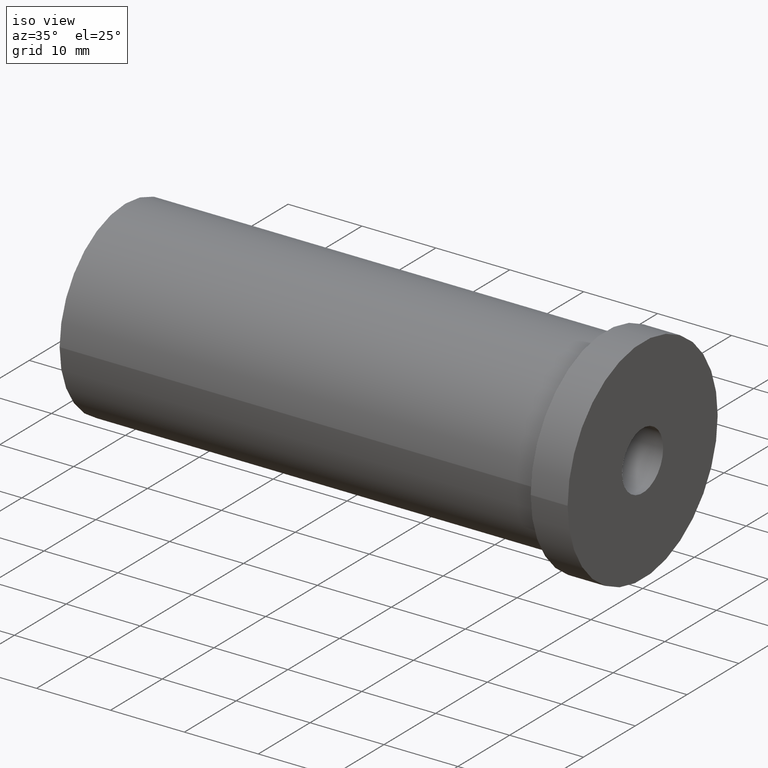
[diagram: clean part render]
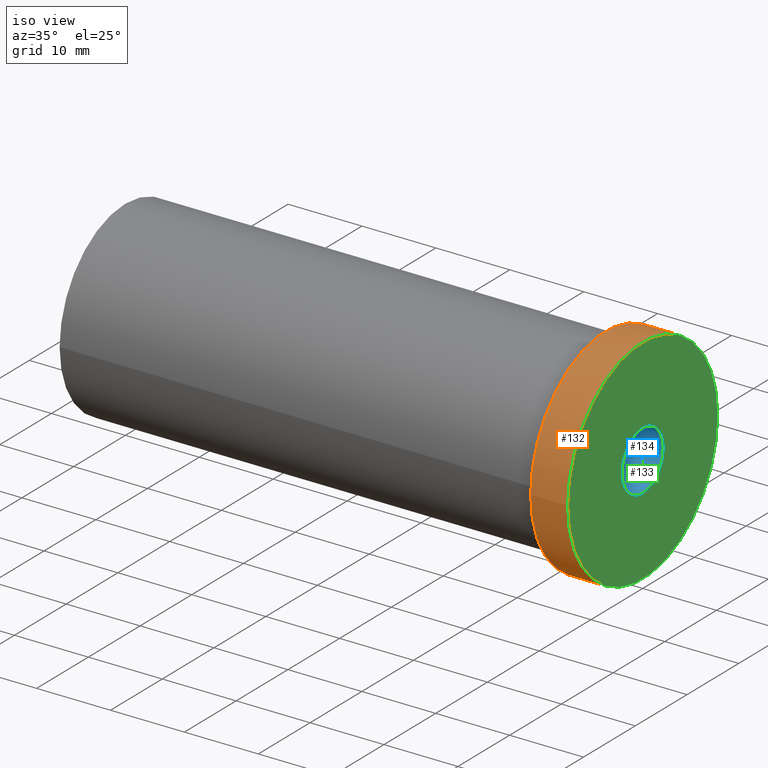
[diagram: same view with three faces highlighted in distinct colors, each labeled with its STEP entity id]
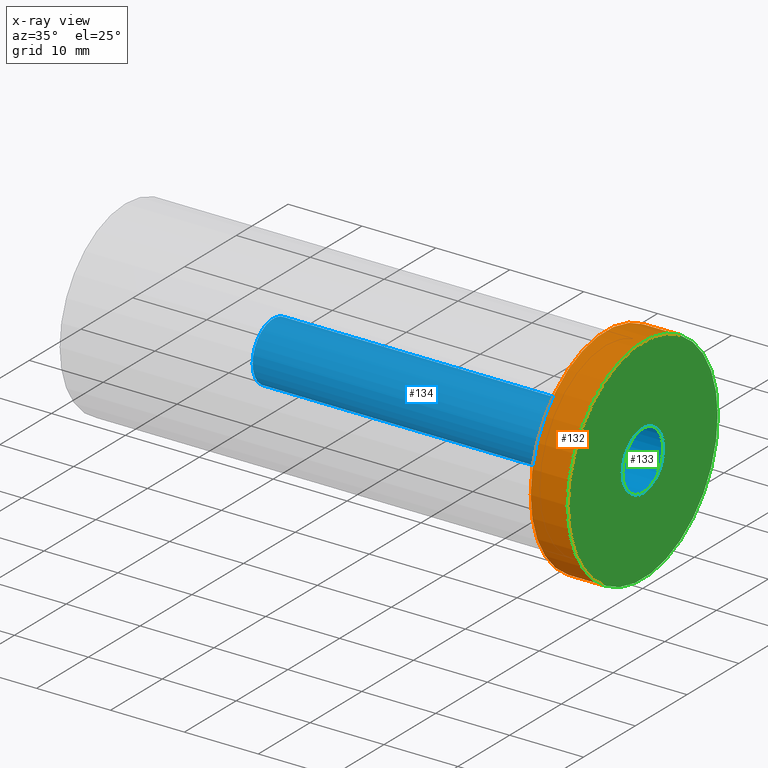
[diagram: x-ray of the same camera — body ghosted, the three highlighted faces saturated]
A machine part, iso view with three faces highlighted in distinct colors.
The next image is the same camera in x-ray (body ghosted, the three faces saturated) — at least one of them is partly hidden behind the body in this view.
Their STEP definitions:

[orange] entity #132 — the highlighted cylindrical surface (bore or boss wall) has radius 14.5 mm, axis along (1, 0, 0).
#27=FACE_OUTER_BOUND('',#38,.T.);
#38=EDGE_LOOP('',(#101,#102,#103,#104));
#51=LINE('',#245,#56);
#56=VECTOR('',#202,14.5);
#62=CIRCLE('',#167,14.5);
#64=CIRCLE('',#170,14.5);
#72=VERTEX_POINT('',#238);
#74=VERTEX_POINT('',#243);
#83=EDGE_CURVE('',#72,#72,#62,.T.);
#85=EDGE_CURVE('',#74,#74,#64,.T.);
#86=EDGE_CURVE('',#74,#72,#51,.T.);
#101=ORIENTED_EDGE('',*,*,#85,.F.);
#102=ORIENTED_EDGE('',*,*,#86,.T.);
#103=ORIENTED_EDGE('',*,*,#83,.T.);
#104=ORIENTED_EDGE('',*,*,#86,.F.);
#126=CYLINDRICAL_SURFACE('',#169,14.5);
#132=ADVANCED_FACE('',(#27),#126,.T.);
#167=AXIS2_PLACEMENT_3D('',#239,#194,#195);
#169=AXIS2_PLACEMENT_3D('',#242,#198,#199);
#170=AXIS2_PLACEMENT_3D('',#244,#200,#201);
#194=DIRECTION('center_axis',(1.,0.,0.));
#195=DIRECTION('ref_axis',(0.,0.,-1.));
#198=DIRECTION('center_axis',(1.,0.,0.));
#199=DIRECTION('ref_axis',(0.,1.,0.));
#200=DIRECTION('center_axis',(1.,0.,0.));
#201=DIRECTION('ref_axis',(0.,0.,-1.));
#202=DIRECTION('',(-1.,0.,0.));
#238=CARTESIAN_POINT('',(-5.,-14.5,-1.77573785876366E-15));
#239=CARTESIAN_POINT('Origin',(-5.,0.,0.));
#242=CARTESIAN_POINT('Origin',(-2.49999999999999,0.,0.));
#243=CARTESIAN_POINT('',(1.77635683940025E-14,-14.5,-1.77573785876366E-15));
#244=CARTESIAN_POINT('Origin',(1.77635683940025E-14,0.,0.));
#245=CARTESIAN_POINT('',(-2.49999999999999,-14.5,-1.77573785876366E-15));

[blue] entity #134 — the highlighted cylindrical surface (bore or boss wall) has radius 3.9688 mm, axis along (1, 0, 0).
#29=FACE_OUTER_BOUND('',#41,.T.);
#41=EDGE_LOOP('',(#107,#108,#109,#110));
#52=LINE('',#251,#57);
#57=VECTOR('',#209,3.96875);
#65=CIRCLE('',#172,3.96875000000001);
#66=CIRCLE('',#174,3.96874999999998);
#75=VERTEX_POINT('',#247);
#76=VERTEX_POINT('',#250);
#87=EDGE_CURVE('',#75,#75,#65,.T.);
#88=EDGE_CURVE('',#75,#76,#52,.T.);
#89=EDGE_CURVE('',#76,#76,#66,.T.);
#107=ORIENTED_EDGE('',*,*,#87,.T.);
#108=ORIENTED_EDGE('',*,*,#88,.T.);
#109=ORIENTED_EDGE('',*,*,#89,.F.);
#110=ORIENTED_EDGE('',*,*,#88,.F.);
#127=CYLINDRICAL_SURFACE('',#173,3.96875);
#134=ADVANCED_FACE('',(#29),#127,.F.);
#172=AXIS2_PLACEMENT_3D('',#248,#205,#206);
#173=AXIS2_PLACEMENT_3D('',#249,#207,#208);
#174=AXIS2_PLACEMENT_3D('',#252,#210,#211);
#205=DIRECTION('center_axis',(1.,0.,0.));
#206=DIRECTION('ref_axis',(0.,0.,-1.));
#207=DIRECTION('center_axis',(1.,0.,0.));
#208=DIRECTION('ref_axis',(0.,1.,0.));
#209=DIRECTION('',(-1.,0.,0.));
#210=DIRECTION('center_axis',(1.,0.,0.));
#211=DIRECTION('ref_axis',(0.,0.,-1.));
#247=CARTESIAN_POINT('',(8.88178419700125E-15,-3.96875,-4.86031698411605E-16));
#248=CARTESIAN_POINT('Origin',(8.88178419700125E-15,0.,0.));
#249=CARTESIAN_POINT('Origin',(-25.,0.,0.));
#250=CARTESIAN_POINT('',(-50.,-3.96875,-4.86031698411605E-16));
#251=CARTESIAN_POINT('',(-25.,-3.96875,-4.86031698411605E-16));
#252=CARTESIAN_POINT('Origin',(-50.,0.,0.));

[green] entity #133 — the highlighted planar face has unit normal (1, 0, 0).
#16=FACE_BOUND('',#40,.T.);
#21=PLANE('',#171);
#28=FACE_OUTER_BOUND('',#39,.T.);
#39=EDGE_LOOP('',(#105));
#40=EDGE_LOOP('',(#106));
#64=CIRCLE('',#170,14.5);
#65=CIRCLE('',#172,3.96875000000001);
#74=VERTEX_POINT('',#243);
#75=VERTEX_POINT('',#247);
#85=EDGE_CURVE('',#74,#74,#64,.T.);
#87=EDGE_CURVE('',#75,#75,#65,.T.);
#105=ORIENTED_EDGE('',*,*,#85,.T.);
#106=ORIENTED_EDGE('',*,*,#87,.F.);
#133=ADVANCED_FACE('',(#28,#16),#21,.T.);
#170=AXIS2_PLACEMENT_3D('',#244,#200,#201);
#171=AXIS2_PLACEMENT_3D('',#246,#203,#204);
#172=AXIS2_PLACEMENT_3D('',#248,#205,#206);
#200=DIRECTION('center_axis',(1.,0.,0.));
#201=DIRECTION('ref_axis',(0.,0.,-1.));
#203=DIRECTION('center_axis',(1.,0.,0.));
#204=DIRECTION('ref_axis',(0.,0.,-1.));
#205=DIRECTION('center_axis',(1.,0.,0.));
#206=DIRECTION('ref_axis',(0.,0.,-1.));
#243=CARTESIAN_POINT('',(1.77635683940025E-14,-14.5,-1.77573785876366E-15));
#244=CARTESIAN_POINT('Origin',(1.77635683940025E-14,0.,0.));
#246=CARTESIAN_POINT('Origin',(6.66133814775094E-15,3.96875000000001,0.));
#247=CARTESIAN_POINT('',(8.88178419700125E-15,-3.96875,-4.86031698411605E-16));
#248=CARTESIAN_POINT('Origin',(8.88178419700125E-15,0.,0.));